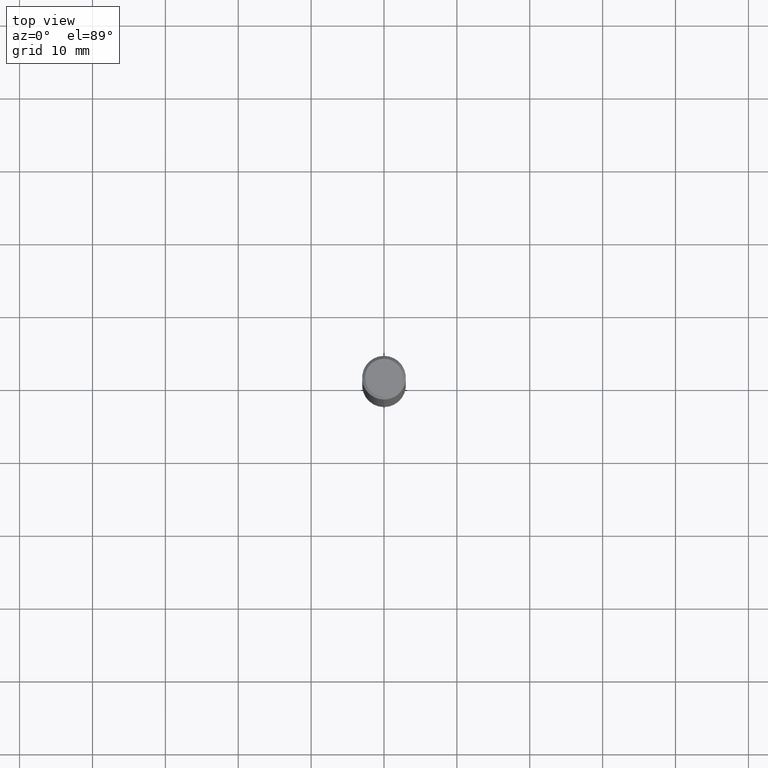
[diagram: clean part render]
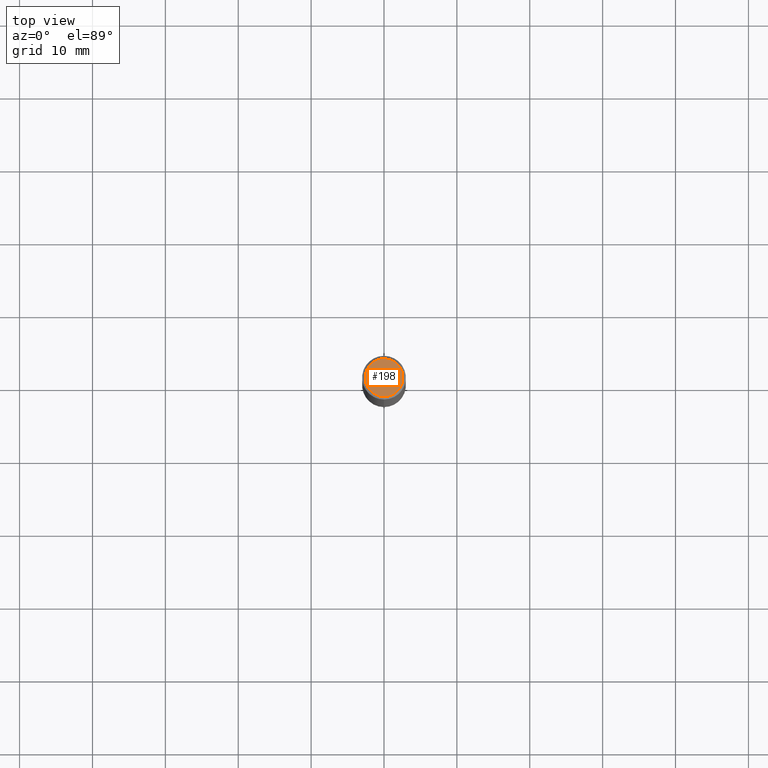
[diagram: same view with one face highlighted and labeled with its STEP entity id]
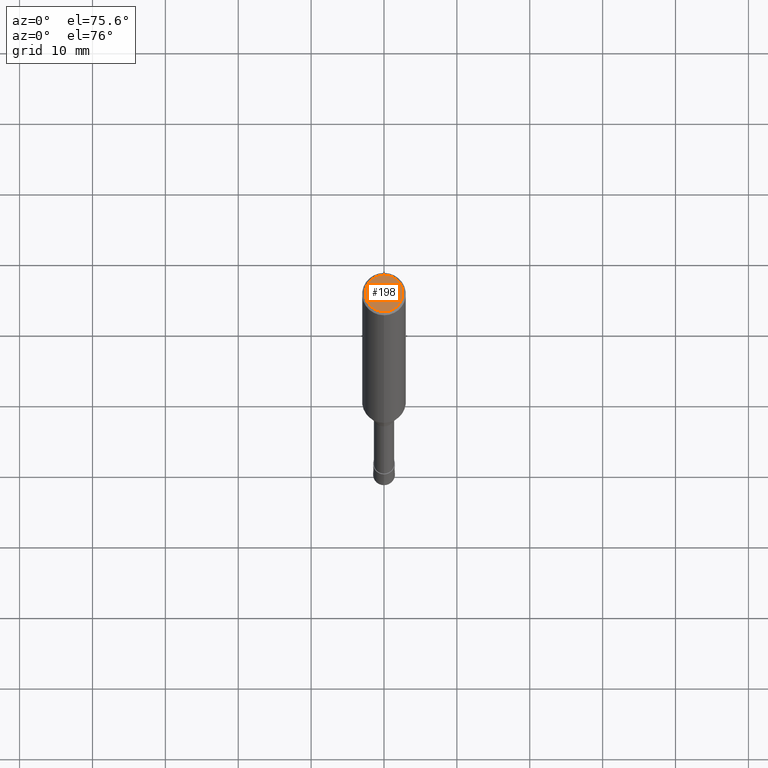
[diagram: same view with one face highlighted and labeled with its STEP entity id]
A machine part, top view. The second image highlights one B-rep face of the part: STEP entity #198.
A second angle (auxiliary view) of the same face is appended — the face is thin or edge-on in the first view.
In plain terms, the highlighted planar face has unit normal (-0, 0, 1).
Its self-contained STEP definition (entity closure, byte-faithful):
#102=VERTEX_POINT('',#240);
#138=EDGE_CURVE('',#102,#200,#280,.T.);
#158=EDGE_CURVE('',#200,#102,#303,.T.);
#198=ADVANCED_FACE('',(#349),#350,.T.);
#200=VERTEX_POINT('',#352);
#240=CARTESIAN_POINT('',(0.0,2.6,0.0));
#280=CIRCLE('',#441,2.6);
#303=CIRCLE('',#473,2.6);
#349=FACE_OUTER_BOUND('',#527,.T.);
#350=PLANE('',#528);
#352=CARTESIAN_POINT('',(3.18397651993818E-016,-2.6,0.0));
#441=AXIS2_PLACEMENT_3D('',#594,#595,#596);
#473=AXIS2_PLACEMENT_3D('',#628,#629,#630);
#527=EDGE_LOOP('',(#698,#699));
#528=AXIS2_PLACEMENT_3D('',#700,#701,#702);
#594=CARTESIAN_POINT('',(0.0,0.0,0.0));
#595=DIRECTION('',(0.0,0.0,-1.0));
#596=DIRECTION('',(0.0,1.0,0.0));
#628=CARTESIAN_POINT('',(0.0,0.0,0.0));
#629=DIRECTION('',(0.0,0.0,-1.0));
#630=DIRECTION('',(0.0,1.0,0.0));
#698=ORIENTED_EDGE('',*,*,#138,.F.);
#699=ORIENTED_EDGE('',*,*,#158,.F.);
#700=CARTESIAN_POINT('',(0.0,1.3,0.0));
#701=DIRECTION('',(-0.0,0.0,1.0));
#702=DIRECTION('',(0.0,-1.0,0.0));